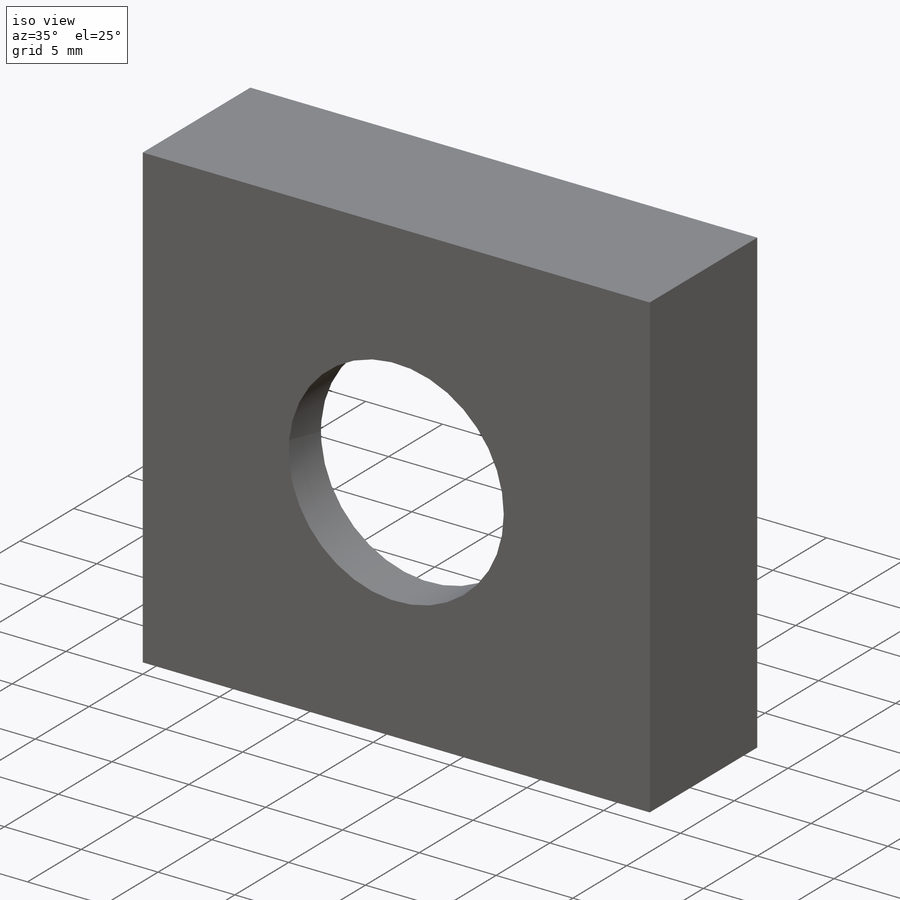
[diagram: iso view]
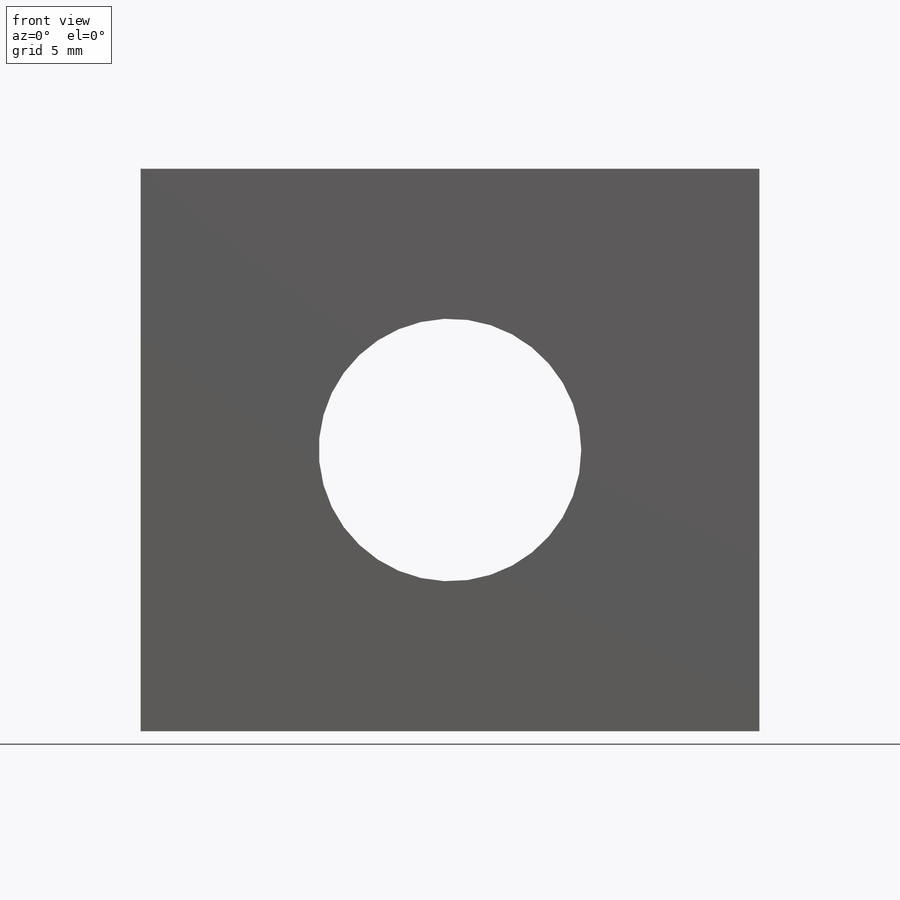
[diagram: front view]
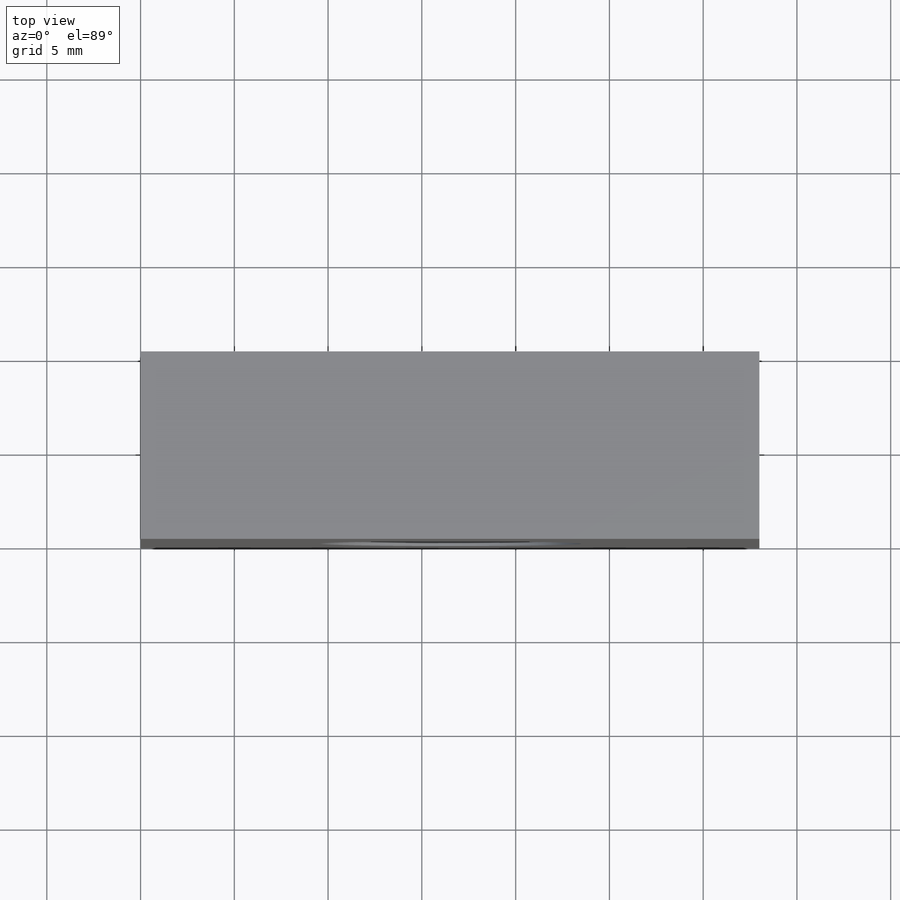
[diagram: top view]
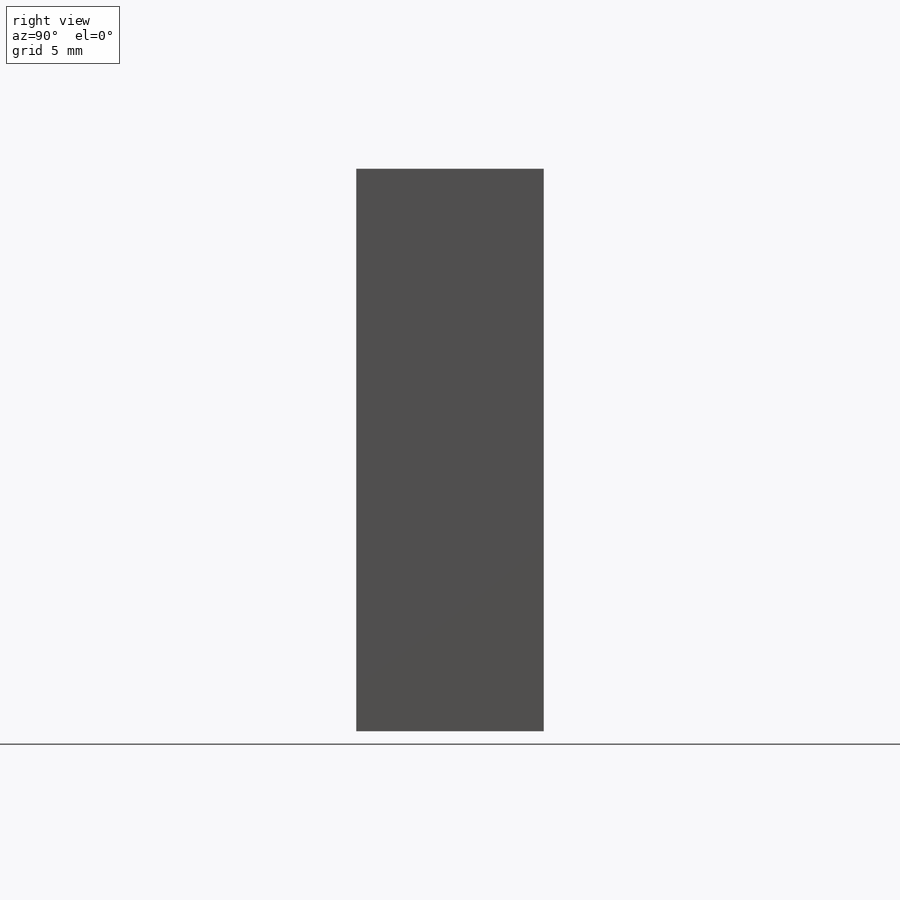
[diagram: right view]
SOLIDWORKS PART (.sldprt)
format: sldprt  version: not decoded by parser v0  size: 212,480 bytes
history: native  units: mm
features: sketch x5, cut_extrude x2, material x1, extrude x1, hole x1 (+11 scaffold rows collapsed)
feature tree (21):
  scaffold x11  (default folders/planes/origin — collapsed)
  material  "POM Acetal Copolymer"
  sketch  "Sketch1"  dims[D1=30.0mm D2=33.0mm]
  extrude  "Boss-Extrude1"  Depth=10mm
  sketch  "Sketch2"  dims[D1=14.0mm D2=16.5mm D3=15.0mm]
  cut_extrude  "Cut-Extrude1"  [1 undecoded]
  sketch  "Sketch3"  dims[D1=29.0mm]
  cut_extrude  "Cut-Extrude2"  Depth=3mm
  hole  "Tap Drill for M3 Tap1"  Diameter=2.5mm Depth=8mm
  sketch  "Sketch5"  dims[c1.D1=4.0mm c1.D2=23.0mm c1.D3=3.0mm c1.D4=5.0mm c2.D2=3.0mm]
  sketch  "Sketch4"  dims[hole-wizard template sketch: 50 standard entries collapsed; hole parameters above]
decode coverage: 8 of 9 modeling features carry decoded parameters
note: ~ marks probable driven/reference dimensions
note: 1 parameter value undecoded
note: suppression state not decoded; provenance and decode notes live in map.json
